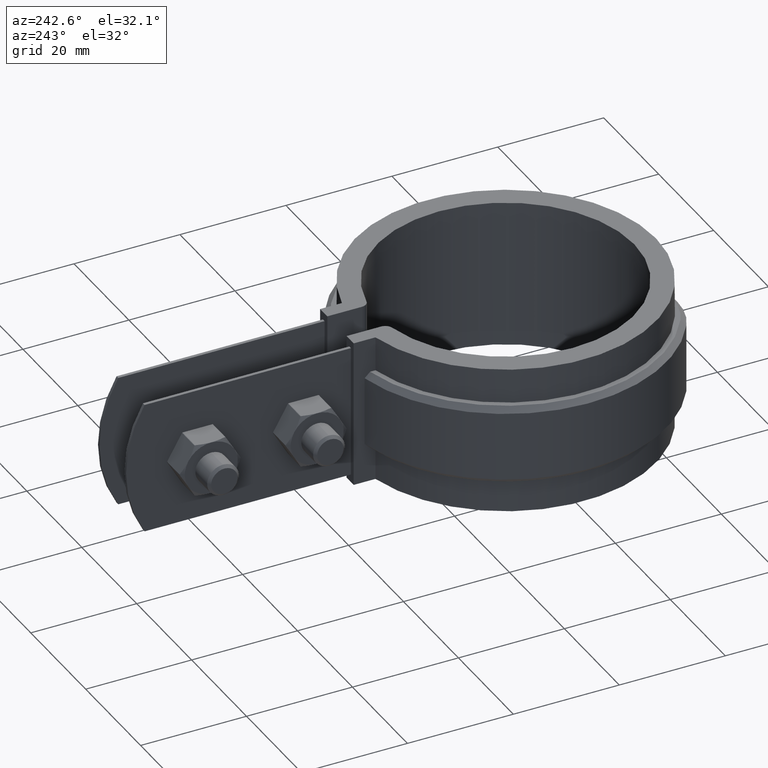
[diagram: clean part render]
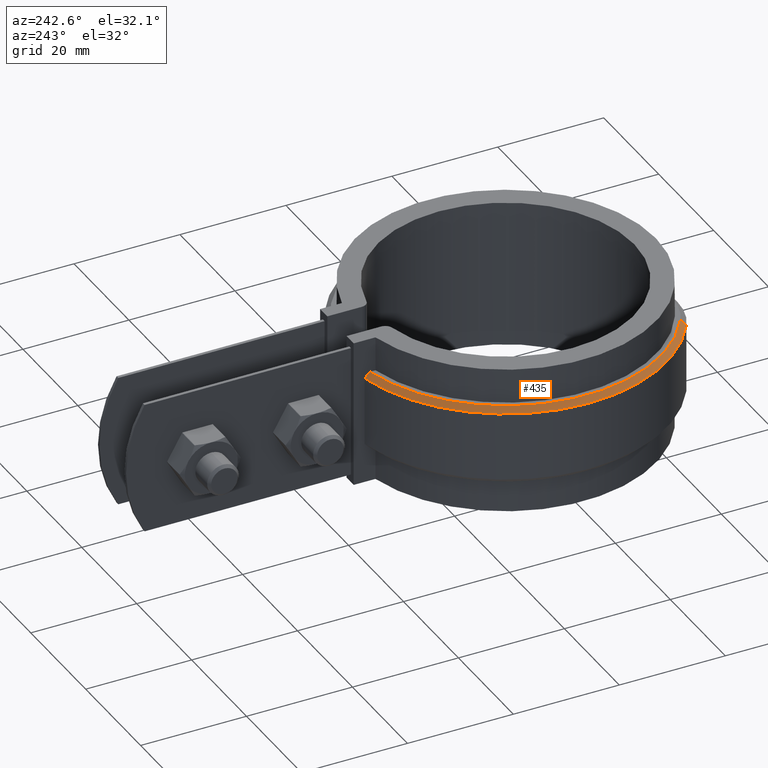
[diagram: same view with one face highlighted and labeled with its STEP entity id]
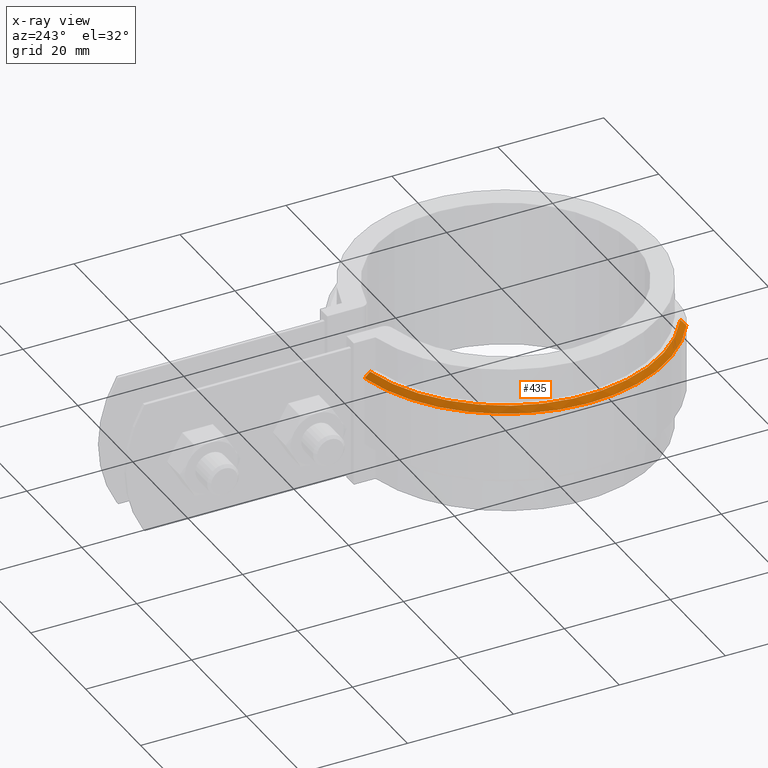
[diagram: x-ray of the same camera — body ghosted, the highlighted face saturated]
A machine part, auxiliary view. The second image highlights one B-rep face of the part: STEP entity #435.
The next image is the same camera in x-ray: the body ghosted, the highlighted face saturated — about 0% of this face is hidden behind the body in this view.
In plain terms, the highlighted conical surface has half-angle 45 deg.
Its self-contained STEP definition (entity closure, byte-faithful):
#435 = ADVANCED_FACE( '', ( #785 ), #786, .T. );
#785 = FACE_OUTER_BOUND( '', #1821, .T. );
#786 = CONICAL_SURFACE( '', #1822, 29.3950000000000, 0.785398163397448 );
#1821 = EDGE_LOOP( '', ( #4086, #4087, #4088, #4089 ) );
#1822 = AXIS2_PLACEMENT_3D( '', #4090, #4091, #4092 );
#4086 = ORIENTED_EDGE( '', *, *, #5537, .F. );
#4087 = ORIENTED_EDGE( '', *, *, #5582, .F. );
#4088 = ORIENTED_EDGE( '', *, *, #5579, .F. );
#4089 = ORIENTED_EDGE( '', *, *, #5583, .F. );
#4090 = CARTESIAN_POINT( '', ( -8.67361737988404E-016, -3.46944695195361E-015, -5.00000000000000 ) );
#4091 = DIRECTION( '', ( 0.000000000000000, 0.000000000000000, -1.00000000000000 ) );
#4092 = DIRECTION( '', ( -1.00000000000000, 0.000000000000000, 0.000000000000000 ) );
#5537 = EDGE_CURVE( '', #6376, #6378, #6379, .T. );
#5579 = EDGE_CURVE( '', #6442, #6443, #6444, .T. );
#5582 = EDGE_CURVE( '', #6443, #6376, #6447, .T. );
#5583 = EDGE_CURVE( '', #6378, #6442, #6448, .F. );
#6376 = VERTEX_POINT( '', #9784 );
#6378 = VERTEX_POINT( '', #9787 );
#6379 = B_SPLINE_CURVE_WITH_KNOTS( '', 3, ( #9788, #9789, #9790, #9791 ), .UNSPECIFIED., .F., .F., ( 4, 4 ), ( 1.84403634944074E-017, 0.00142949551719674 ), .UNSPECIFIED. );
#6442 = VERTEX_POINT( '', #9883 );
#6443 = VERTEX_POINT( '', #9884 );
#6444 = LINE( '', #9885, #9886 );
#6447 = CIRCLE( '', #9889, 30.3950000000000 );
#6448 = CIRCLE( '', #9890, 29.3950000000000 );
#9784 = CARTESIAN_POINT( '', ( -6.10000000000002, 29.7766019720182, -6.00000000000000 ) );
#9787 = CARTESIAN_POINT( '', ( -6.10000000000002, 28.7551043294925, -5.00000000000000 ) );
#9788 = CARTESIAN_POINT( '', ( -6.10000000000002, 29.7766019720182, -6.00000000000000 ) );
#9789 = CARTESIAN_POINT( '', ( -6.10000000000002, 29.4362218572914, -5.66654505032372 ) );
#9790 = CARTESIAN_POINT( '', ( -6.10000000000002, 29.0957267367249, -5.33320744537946 ) );
#9791 = CARTESIAN_POINT( '', ( -6.10000000000002, 28.7551043294925, -5.00000000000000 ) );
#9883 = CARTESIAN_POINT( '', ( -15.5572625747343, -24.9406817505210, -5.00000000000000 ) );
#9884 = CARTESIAN_POINT( '', ( -16.0865111739769, -25.7891485561179, -6.00000000000000 ) );
#9885 = CARTESIAN_POINT( '', ( -15.5572625747343, -24.9406817505210, -5.00000000000000 ) );
#9886 = VECTOR( '', #10800, 1000.00000000000 );
#9889 = AXIS2_PLACEMENT_3D( '', #10807, #10808, #10809 );
#9890 = AXIS2_PLACEMENT_3D( '', #10810, #10811, #10812 );
#10800 = DIRECTION( '', ( -0.374235273457879, -0.599956631849258, -0.707106781186548 ) );
#10807 = CARTESIAN_POINT( '', ( -8.67361737988404E-016, -3.46944695195361E-015, -6.00000000000000 ) );
#10808 = DIRECTION( '', ( 0.000000000000000, 0.000000000000000, -1.00000000000000 ) );
#10809 = DIRECTION( '', ( -1.00000000000000, 0.000000000000000, 0.000000000000000 ) );
#10810 = CARTESIAN_POINT( '', ( -8.67361737988404E-016, -3.46944695195361E-015, -5.00000000000000 ) );
#10811 = DIRECTION( '', ( 0.000000000000000, 0.000000000000000, -1.00000000000000 ) );
#10812 = DIRECTION( '', ( -1.00000000000000, 0.000000000000000, 0.000000000000000 ) );